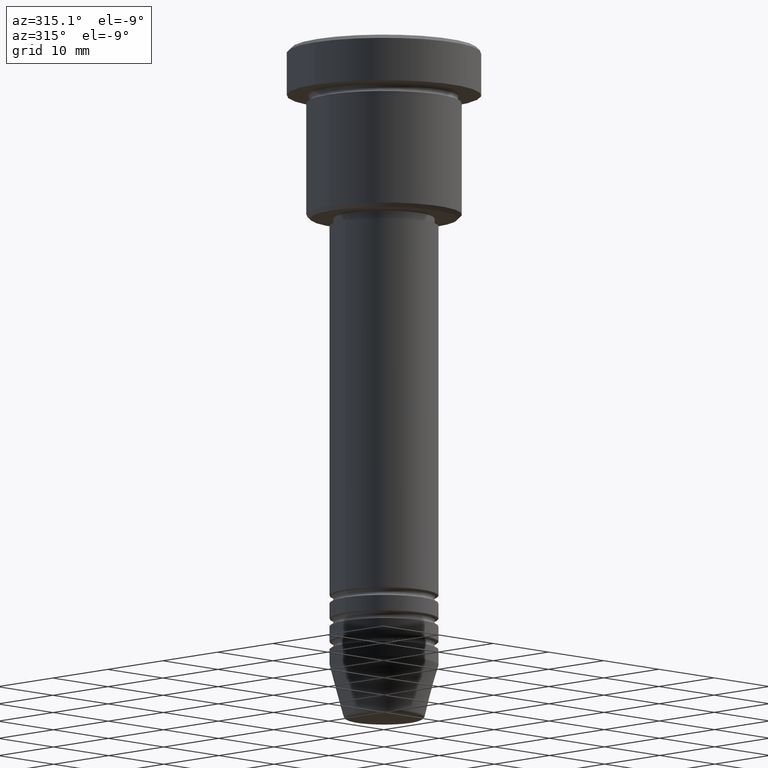
[diagram: clean part render]
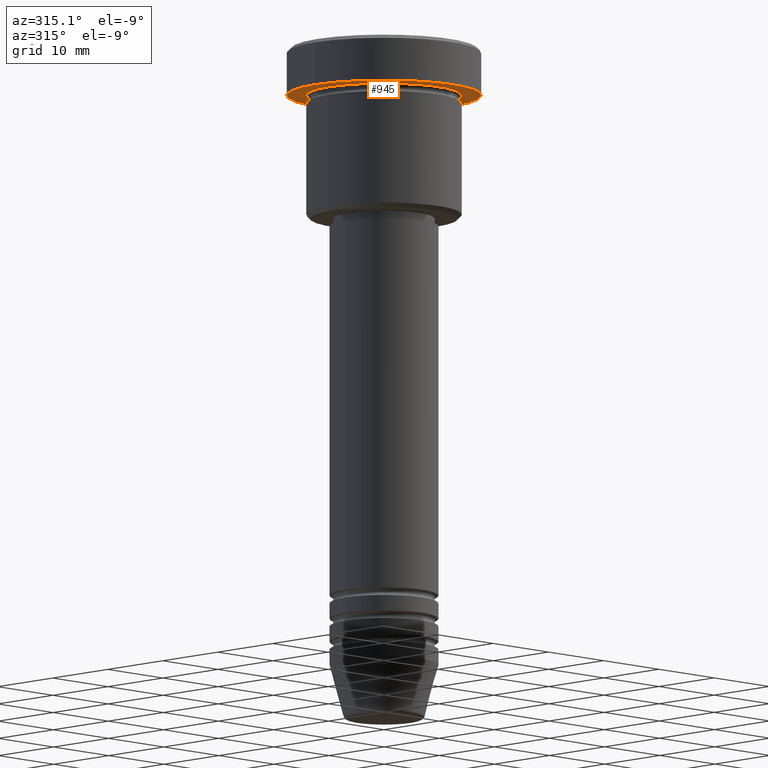
[diagram: same view with one face highlighted and labeled with its STEP entity id]
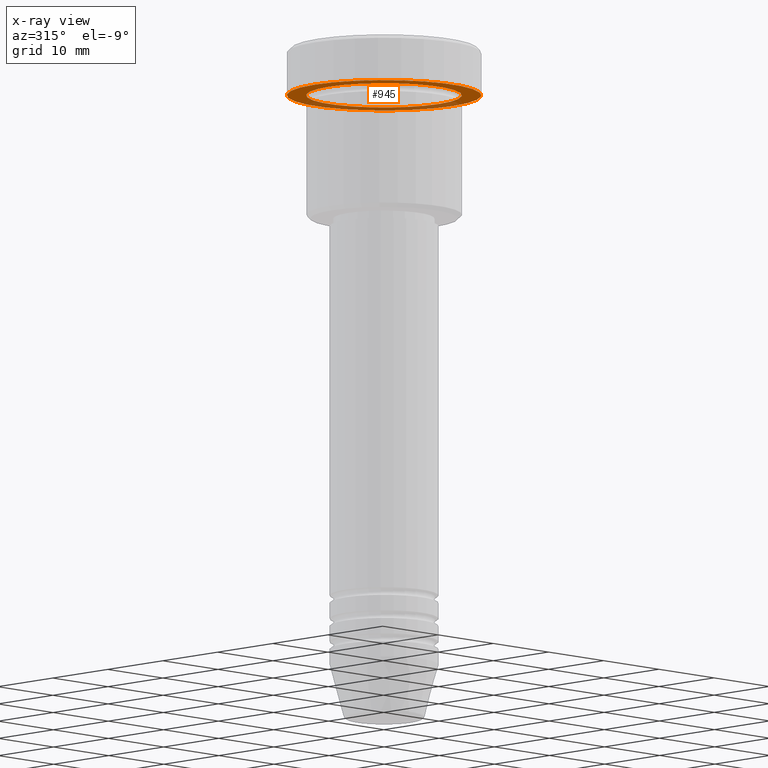
[diagram: x-ray of the same camera — body ghosted, the highlighted face saturated]
A machine part, auxiliary view. The second image highlights one B-rep face of the part: STEP entity #945.
The next image is the same camera in x-ray: the body ghosted, the highlighted face saturated — about 31% of this face is hidden behind the body in this view.
In plain terms, the highlighted planar face has unit normal (0, 0, -1).
Its self-contained STEP definition (entity closure, byte-faithful):
#17 = CARTESIAN_POINT ( 'NONE',  ( 12.50000000000000000, 0.000000000000000000, -5.999999999999996447 ) ) ;
#54 = VERTEX_POINT ( 'NONE', #699 ) ;
#67 = ORIENTED_EDGE ( 'NONE', *, *, #844, .T. ) ;
#69 = CIRCLE ( 'NONE', #462, 10.00000000000000000 ) ;
#116 = DIRECTION ( 'NONE',  ( -0.000000000000000000, -0.000000000000000000, 1.000000000000000000 ) ) ;
#123 = EDGE_CURVE ( 'NONE', #54, #1096, #69, .T. ) ;
#131 = EDGE_LOOP ( 'NONE', ( #781, #67 ) ) ;
#144 = AXIS2_PLACEMENT_3D ( 'NONE', #335, #979, #252 ) ;
#148 = DIRECTION ( 'NONE',  ( -0.000000000000000000, -0.000000000000000000, 1.000000000000000000 ) ) ;
#171 = EDGE_CURVE ( 'NONE', #742, #1090, #249, .T. ) ;
#188 = DIRECTION ( 'NONE',  ( -0.000000000000000000, -0.000000000000000000, 1.000000000000000000 ) ) ;
#249 = CIRCLE ( 'NONE', #850, 12.50000000000000000 ) ;
#252 = DIRECTION ( 'NONE',  ( -1.000000000000000000, 0.000000000000000000, -0.000000000000000000 ) ) ;
#335 = CARTESIAN_POINT ( 'NONE',  ( 0.000000000000000000, 12.50000000000000000, -5.999999999999996447 ) ) ;
#409 = CIRCLE ( 'NONE', #487, 12.50000000000000000 ) ;
#442 = PLANE ( 'NONE',  #144 ) ;
#462 = AXIS2_PLACEMENT_3D ( 'NONE', #647, #116, #935 ) ;
#469 = ORIENTED_EDGE ( 'NONE', *, *, #171, .F. ) ;
#485 = CIRCLE ( 'NONE', #777, 10.00000000000000000 ) ;
#487 = AXIS2_PLACEMENT_3D ( 'NONE', #845, #188, #919 ) ;
#510 = DIRECTION ( 'NONE',  ( -1.000000000000000000, 0.000000000000000000, 0.000000000000000000 ) ) ;
#564 = DIRECTION ( 'NONE',  ( 1.000000000000000000, 0.000000000000000000, 0.000000000000000000 ) ) ;
#647 = CARTESIAN_POINT ( 'NONE',  ( 0.000000000000000000, 0.000000000000000000, -5.999999999999996447 ) ) ;
#655 = CARTESIAN_POINT ( 'NONE',  ( 0.000000000000000000, 0.000000000000000000, -5.999999999999996447 ) ) ;
#699 = CARTESIAN_POINT ( 'NONE',  ( -10.00000000000000000, 0.000000000000000000, -5.999999999999996447 ) ) ;
#707 = EDGE_LOOP ( 'NONE', ( #1006, #469 ) ) ;
#739 = CARTESIAN_POINT ( 'NONE',  ( 10.00000000000000000, 1.224646799147353256E-15, -5.999999999999996447 ) ) ;
#742 = VERTEX_POINT ( 'NONE', #1036 ) ;
#777 = AXIS2_PLACEMENT_3D ( 'NONE', #962, #148, #510 ) ;
#781 = ORIENTED_EDGE ( 'NONE', *, *, #123, .T. ) ;
#813 = FACE_BOUND ( 'NONE', #131, .T. ) ;
#844 = EDGE_CURVE ( 'NONE', #1096, #54, #485, .T. ) ;
#845 = CARTESIAN_POINT ( 'NONE',  ( 0.000000000000000000, 0.000000000000000000, -5.999999999999996447 ) ) ;
#850 = AXIS2_PLACEMENT_3D ( 'NONE', #655, #1016, #564 ) ;
#919 = DIRECTION ( 'NONE',  ( 1.000000000000000000, 0.000000000000000000, 0.000000000000000000 ) ) ;
#935 = DIRECTION ( 'NONE',  ( -1.000000000000000000, 0.000000000000000000, 0.000000000000000000 ) ) ;
#945 = ADVANCED_FACE ( 'NONE', ( #813, #1075 ), #442, .T. ) ;
#962 = CARTESIAN_POINT ( 'NONE',  ( 0.000000000000000000, 0.000000000000000000, -5.999999999999996447 ) ) ;
#979 = DIRECTION ( 'NONE',  ( 0.000000000000000000, 0.000000000000000000, -1.000000000000000000 ) ) ;
#1006 = ORIENTED_EDGE ( 'NONE', *, *, #1129, .F. ) ;
#1016 = DIRECTION ( 'NONE',  ( -0.000000000000000000, -0.000000000000000000, 1.000000000000000000 ) ) ;
#1036 = CARTESIAN_POINT ( 'NONE',  ( -12.50000000000000000, 1.530808498934191521E-15, -5.999999999999996447 ) ) ;
#1075 = FACE_OUTER_BOUND ( 'NONE', #707, .T. ) ;
#1090 = VERTEX_POINT ( 'NONE', #17 ) ;
#1096 = VERTEX_POINT ( 'NONE', #739 ) ;
#1129 = EDGE_CURVE ( 'NONE', #1090, #742, #409, .T. ) ;